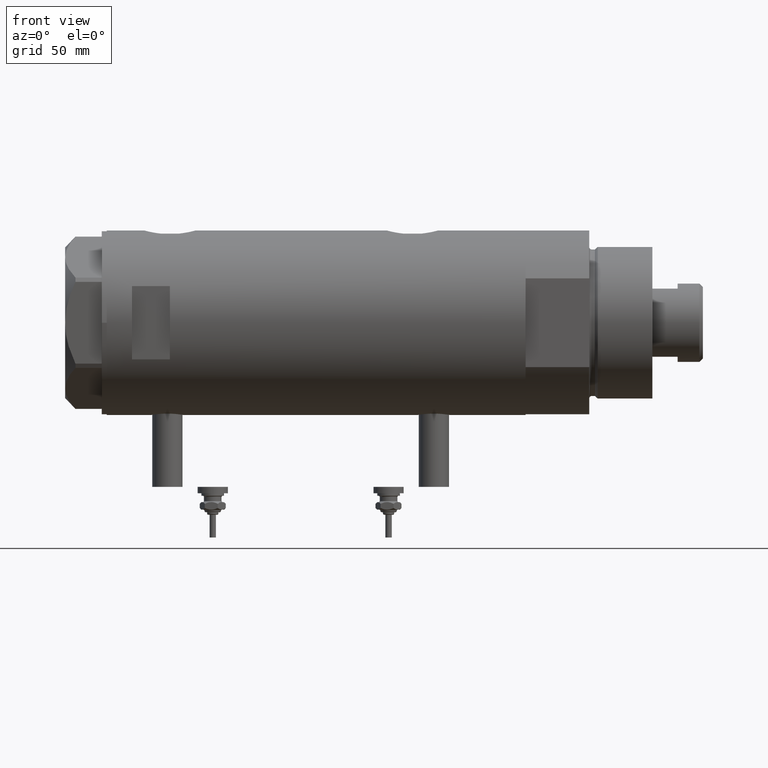
[diagram: clean part render]
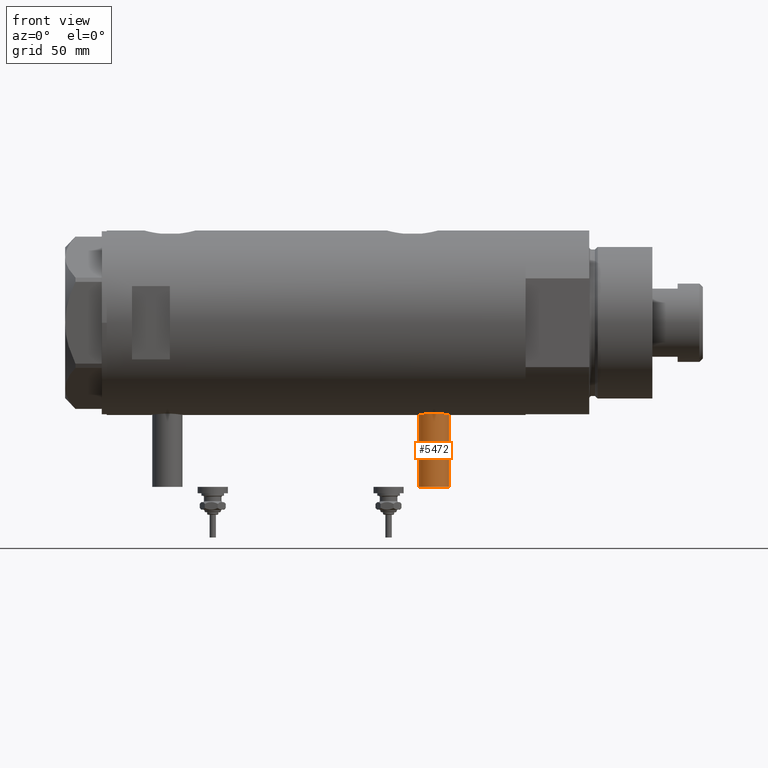
[diagram: same view with one face highlighted and labeled with its STEP entity id]
A machine part, front view. The second image highlights one B-rep face of the part: STEP entity #5472.
In plain terms, the highlighted cylindrical surface (edge-blend (fillet) strip) has radius 6 mm, axis along (0, 0, 1).
Its self-contained STEP definition (entity closure, byte-faithful):
#80 = DIRECTION ( 'NONE',  ( 0.000000000000000000, 0.000000000000000000, 1.000000000000000000 ) ) ;
#83 = LINE ( 'NONE', #535, #4505 ) ;
#98 = VERTEX_POINT ( 'NONE', #3025 ) ;
#230 = AXIS2_PLACEMENT_3D ( 'NONE', #3069, #332, #1721 ) ;
#332 = DIRECTION ( 'NONE',  ( -1.000000000000000000, 0.000000000000000000, 0.000000000000000000 ) ) ;
#461 = ORIENTED_EDGE ( 'NONE', *, *, #1776, .F. ) ;
#516 = CIRCLE ( 'NONE', #1959, 6.000000000000005329 ) ;
#535 = CARTESIAN_POINT ( 'NONE',  ( -65.00000000000000000, 7.347880794884122694E-16, -40.59999999999999432 ) ) ;
#1423 = CARTESIAN_POINT ( 'NONE',  ( -65.00000000000000000, 0.000000000000000000, -46.60000000000000142 ) ) ;
#1586 = CARTESIAN_POINT ( 'NONE',  ( -65.00000000000000000, 0.000000000000000000, -52.60000000000000853 ) ) ;
#1721 = DIRECTION ( 'NONE',  ( 0.000000000000000000, 0.000000000000000000, 1.000000000000000000 ) ) ;
#1776 = EDGE_CURVE ( 'NONE', #5386, #2298, #83, .T. ) ;
#1916 = DIRECTION ( 'NONE',  ( 1.000000000000000000, -0.000000000000000000, -0.000000000000000000 ) ) ;
#1922 = ORIENTED_EDGE ( 'NONE', *, *, #3570, .T. ) ;
#1959 = AXIS2_PLACEMENT_3D ( 'NONE', #4171, #4146, #80 ) ;
#2298 = VERTEX_POINT ( 'NONE', #5190 ) ;
#2659 = EDGE_LOOP ( 'NONE', ( #461, #3525, #1922, #5231 ) ) ;
#2777 = CYLINDRICAL_SURFACE ( 'NONE', #5886, 6.000000000000005329 ) ;
#2811 = CARTESIAN_POINT ( 'NONE',  ( -65.00000000000000000, 7.347880794884119736E-16, -40.59999999999999432 ) ) ;
#2996 = CARTESIAN_POINT ( 'NONE',  ( -65.00000000000000000, 0.000000000000000000, -52.60000000000000853 ) ) ;
#3025 = CARTESIAN_POINT ( 'NONE',  ( -35.29999999999999716, 0.000000000000000000, -52.60000000000000853 ) ) ;
#3069 = CARTESIAN_POINT ( 'NONE',  ( -65.00000000000000000, 0.000000000000000000, -46.60000000000000142 ) ) ;
#3342 = DIRECTION ( 'NONE',  ( 1.000000000000000000, -0.000000000000000000, -0.000000000000000000 ) ) ;
#3525 = ORIENTED_EDGE ( 'NONE', *, *, #5322, .F. ) ;
#3570 = EDGE_CURVE ( 'NONE', #3801, #98, #5041, .T. ) ;
#3626 = FACE_OUTER_BOUND ( 'NONE', #2659, .T. ) ;
#3746 = DIRECTION ( 'NONE',  ( 0.000000000000000000, 0.000000000000000000, -1.000000000000000000 ) ) ;
#3801 = VERTEX_POINT ( 'NONE', #1586 ) ;
#4146 = DIRECTION ( 'NONE',  ( -1.000000000000000000, 0.000000000000000000, 0.000000000000000000 ) ) ;
#4171 = CARTESIAN_POINT ( 'NONE',  ( -35.29999999999999716, 0.000000000000000000, -46.60000000000000142 ) ) ;
#4505 = VECTOR ( 'NONE', #1916, 1000.000000000000000 ) ;
#4539 = CIRCLE ( 'NONE', #230, 6.000000000000005329 ) ;
#4819 = DIRECTION ( 'NONE',  ( 1.000000000000000000, -0.000000000000000000, -0.000000000000000000 ) ) ;
#5041 = LINE ( 'NONE', #2996, #5300 ) ;
#5190 = CARTESIAN_POINT ( 'NONE',  ( -35.29999999999999716, 7.347880794884119736E-16, -40.59999999999999432 ) ) ;
#5231 = ORIENTED_EDGE ( 'NONE', *, *, #5844, .T. ) ;
#5300 = VECTOR ( 'NONE', #4819, 1000.000000000000000 ) ;
#5322 = EDGE_CURVE ( 'NONE', #3801, #5386, #4539, .T. ) ;
#5386 = VERTEX_POINT ( 'NONE', #2811 ) ;
#5472 = ADVANCED_FACE ( 'NONE', ( #3626 ), #2777, .T. ) ;
#5844 = EDGE_CURVE ( 'NONE', #98, #2298, #516, .T. ) ;
#5886 = AXIS2_PLACEMENT_3D ( 'NONE', #1423, #3342, #3746 ) ;